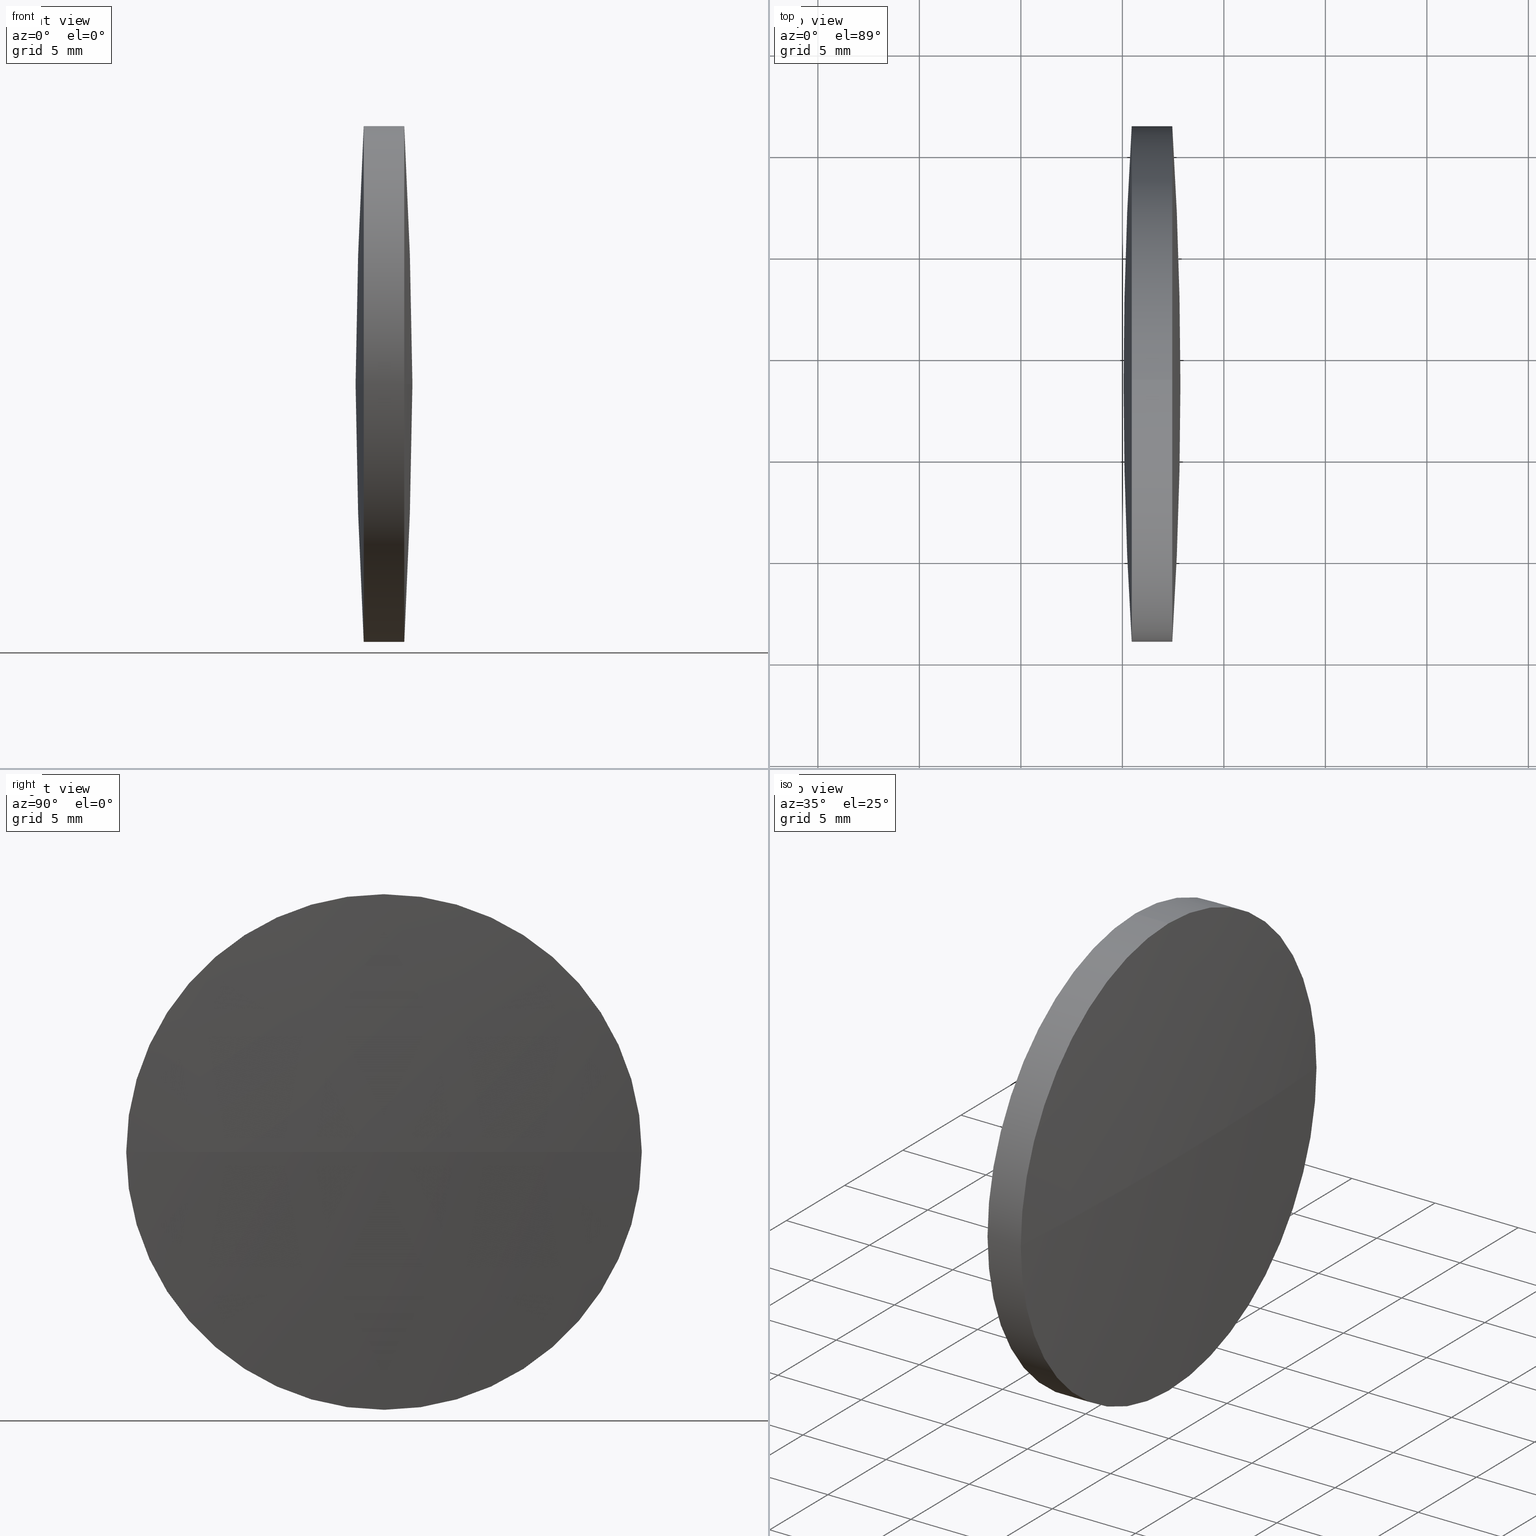
[diagram: canonical four-view strip — front | top / right | iso, engineering-drawing reading convention]
A machine part, canonical four-view strip (front | top / right | iso — engineering-drawing reading convention). The complete STEP part file that produces these views, byte-faithful:
ISO-10303-21;
HEADER;
FILE_DESCRIPTION (( 'STEP AP203' ),
    '1' );
FILE_NAME ('110157.STEP',
    '2019-07-09T05:35:10',
    ( '' ),
    ( '' ),
    'SwSTEP 2.0',
    'SolidWorks 2016',
    '' );
FILE_SCHEMA (( 'CONFIG_CONTROL_DESIGN' ));
ENDSEC;

DATA;
#1 = AXIS2_PLACEMENT_3D ( 'NONE', #160, #211, #30 ) ;
#2 = CARTESIAN_POINT ( 'NONE',  ( 85.45852234609111500, 48.61611302318478100, -12.69999999999999600 ) ) ;
#3 = DIRECTION ( 'NONE',  ( -1.000000000000000000, -0.0000000000000000000, -0.0000000000000000000 ) ) ;
#4 = LOCAL_TIME ( 13, 35, 10.00000000000000000, #321 ) ;
#5 = APPROVAL_DATE_TIME ( #291, #10 ) ;
#6 = CARTESIAN_POINT ( 'NONE',  ( 85.45852234609111500, 48.61611302318478100, 0.0000000000000000000 ) ) ;
#7 = DIRECTION ( 'NONE',  ( -1.000000000000000000, -0.0000000000000000000, -0.0000000000000000000 ) ) ;
#8 = CARTESIAN_POINT ( 'NONE',  ( 79.30540135083715800, 48.61611302318478100, 0.0000000000000000000 ) ) ;
#9 = COORDINATED_UNIVERSAL_TIME_OFFSET ( 8, 0, .AHEAD. ) ;
#10 = APPROVAL ( #177, 'δָ��' ) ;
#11 = EDGE_CURVE ( 'NONE', #73, #296, #157, .T. ) ;
#12 = PERSON_AND_ORGANIZATION ( #110, #148 ) ;
#13 = PRODUCT_RELATED_PRODUCT_CATEGORY ( 'detail', '', ( #337 ) ) ;
#14 = UNCERTAINTY_MEASURE_WITH_UNIT (LENGTH_MEASURE( 1.000000000000000100E-005 ), #129, 'distance_accuracy_value', 'NONE');
#15 = COORDINATED_UNIVERSAL_TIME_OFFSET ( 8, 0, .AHEAD. ) ;
#16 = DATE_AND_TIME ( #141, #252 ) ;
#17 = ORIENTED_EDGE ( 'NONE', *, *, #65, .T. ) ;
#18 = EDGE_CURVE ( 'NONE', #253, #302, #282, .T. ) ;
#19 = PRODUCT_DEFINITION ( 'δ֪', '', #256, #280 ) ;
#20 = CALENDAR_DATE ( 2019, 9, 7 ) ;
#21 = APPLICATION_CONTEXT ( 'configuration controlled 3d designs of mechanical parts and assemblies' ) ;
#22 = ORIENTED_EDGE ( 'NONE', *, *, #11, .T. ) ;
#23 = PRODUCT_RELATED_PRODUCT_CATEGORY ( 'detail', '', ( #136 ) ) ;
#24 = PERSON_AND_ORGANIZATION_ROLE ( 'creator' ) ;
#25 = DIRECTION ( 'NONE',  ( 0.0000000000000000000, 0.0000000000000000000, 1.000000000000000000 ) ) ;
#26 = CARTESIAN_POINT ( 'NONE',  ( 79.30540135083715800, 48.61611302318478100, 12.69999999999999600 ) ) ;
#27 = COORDINATED_UNIVERSAL_TIME_OFFSET ( 8, 0, .AHEAD. ) ;
#28 = ORIENTED_EDGE ( 'NONE', *, *, #338, .T. ) ;
#29 = DIRECTION ( 'NONE',  ( 0.0000000000000000000, 1.000000000000000000, 1.224646799147353500E-016 ) ) ;
#30 = DIRECTION ( 'NONE',  ( -1.000000000000000000, 0.0000000000000000000, 0.0000000000000000000 ) ) ;
#31 = EDGE_CURVE ( 'NONE', #328, #52, #111, .T. ) ;
#32 = ORIENTED_EDGE ( 'NONE', *, *, #45, .T. ) ;
#33 = CC_DESIGN_PERSON_AND_ORGANIZATION_ASSIGNMENT ( #316, #75, ( #337 ) ) ;
#34 = CARTESIAN_POINT ( 'NONE',  ( 87.85816920323401300, 48.61611302318509300, 0.0000000000000000000 ) ) ;
#35 = FACE_OUTER_BOUND ( 'NONE', #163, .T. ) ;
#36 = VERTEX_POINT ( 'NONE', #114 ) ;
#37 = DIRECTION ( 'NONE',  ( 0.0000000000000000000, 0.0000000000000000000, 1.000000000000000000 ) ) ;
#38 = CALENDAR_DATE ( 2019, 9, 7 ) ;
#39 = ADVANCED_FACE ( 'NONE', ( #96 ), #90, .T. ) ;
#40 = CC_DESIGN_APPROVAL ( #323, ( #224 ) ) ;
#41 = APPROVAL_PERSON_ORGANIZATION ( #324, #323, #313 ) ;
#42 = SPHERICAL_SURFACE ( 'NONE', #53, 201.6595428629199500 ) ;
#43 = CALENDAR_DATE ( 2019, 9, 7 ) ;
#44 = ORIENTED_EDGE ( 'NONE', *, *, #273, .T. ) ;
#45 = EDGE_CURVE ( 'NONE', #296, #36, #274, .T. ) ;
#46 = APPLICATION_PROTOCOL_DEFINITION ( 'international standard', 'config_control_design', 1994, #318 ) ;
#47 = APPROVAL_ROLE ( '' ) ;
#48 = DIRECTION ( 'NONE',  ( 0.0000000000000000000, -1.224646799147353200E-016, 1.000000000000000000 ) ) ;
#49 = DATE_TIME_ROLE ( 'creation_date' ) ;
#50 = COORDINATED_UNIVERSAL_TIME_OFFSET ( 8, 0, .AHEAD. ) ;
#51 = CC_DESIGN_DATE_AND_TIME_ASSIGNMENT ( #308, #206, ( #343 ) ) ;
#52 = VERTEX_POINT ( 'NONE', #2 ) ;
#53 = AXIS2_PLACEMENT_3D ( 'NONE', #220, #165, #297 ) ;
#54 = APPROVAL_STATUS ( 'not_yet_approved' ) ;
#55 = ADVANCED_BREP_SHAPE_REPRESENTATION ( '110157', ( #196, #184 ), #244 ) ;
#56 = DIRECTION ( 'NONE',  ( -1.000000000000000000, -0.0000000000000000000, -0.0000000000000000000 ) ) ;
#57 = CIRCLE ( 'NONE', #228, 201.6595428629401900 ) ;
#58 = ORIENTED_EDGE ( 'NONE', *, *, #18, .T. ) ;
#59 = CARTESIAN_POINT ( 'NONE',  ( 87.45786520323396500, 48.61611302318478100, -12.69999999999999600 ) ) ;
#60 = AXIS2_PLACEMENT_3D ( 'NONE', #266, #139, #320 ) ;
#61 = CC_DESIGN_PERSON_AND_ORGANIZATION_ASSIGNMENT ( #295, #289, ( #343 ) ) ;
#62 = CARTESIAN_POINT ( 'NONE',  ( 87.45786520323396500, 48.61611302318478100, 0.0000000000000000000 ) ) ;
#63 = DIRECTION ( 'NONE',  ( -1.000000000000000000, -0.0000000000000000000, -0.0000000000000000000 ) ) ;
#64 = PERSON_AND_ORGANIZATION ( #110, #148 ) ;
#65 = EDGE_CURVE ( 'NONE', #239, #296, #152, .T. ) ;
#66 = DIRECTION ( 'NONE',  ( 0.0000000000000000000, 0.0000000000000000000, 1.000000000000000000 ) ) ;
#67 = PERSON_AND_ORGANIZATION ( #110, #148 ) ;
#68 = ORIENTED_EDGE ( 'NONE', *, *, #11, .F. ) ;
#69 = LINE ( 'NONE', #94, #197 ) ;
#70 = CC_DESIGN_DATE_AND_TIME_ASSIGNMENT ( #166, #285, ( #329 ) ) ;
#71 = AXIS2_PLACEMENT_3D ( 'NONE', #167, #245, #241 ) ;
#72 = ADVANCED_FACE ( 'NONE', ( #35 ), #145, .T. ) ;
#73 = VERTEX_POINT ( 'NONE', #59 ) ;
#74 = AXIS2_PLACEMENT_3D ( 'NONE', #217, #91, #92 ) ;
#75 = PERSON_AND_ORGANIZATION_ROLE ( 'design_owner' ) ;
#76 = APPROVAL_ROLE ( '' ) ;
#77 = CC_DESIGN_APPROVAL ( #100, ( #329 ) ) ;
#78 = LOCAL_TIME ( 13, 35, 10.00000000000000000, #133 ) ;
#79 = PRODUCT_DEFINITION_SHAPE ( 'NONE', 'NONE',  #224 ) ;
#80 = CIRCLE ( 'NONE', #248, 12.69999999999999600 ) ;
#81 = CARTESIAN_POINT ( 'NONE',  ( 85.45852234609111500, 48.61611302318478100, 12.69999999999999600 ) ) ;
#82 = PERSON_AND_ORGANIZATION_ROLE ( 'creator' ) ;
#83 = APPROVAL_ROLE ( '' ) ;
#84 = DIRECTION ( 'NONE',  ( 1.000000000000000000, 0.0000000000000000000, 0.0000000000000000000 ) ) ;
#85 = APPROVAL_PERSON_ORGANIZATION ( #67, #276, #234 ) ;
#86 = EDGE_LOOP ( 'NONE', ( #247, #97, #169, #190, #230, #186 ) ) ;
#87 = DIRECTION ( 'NONE',  ( 0.0000000000000000000, 0.0000000000000000000, 1.000000000000000000 ) ) ;
#88 = APPLICATION_PROTOCOL_DEFINITION ( 'international standard', 'config_control_design', 1994, #240 ) ;
#89 = APPROVAL_DATE_TIME ( #95, #276 ) ;
#90 = SPHERICAL_SURFACE ( 'NONE', #207, 201.6595428629199500 ) ;
#91 = DIRECTION ( 'NONE',  ( -0.0000000000000000000, 0.0000000000000000000, -1.000000000000000000 ) ) ;
#92 = DIRECTION ( 'NONE',  ( 0.0000000000000000000, 1.000000000000000000, 0.0000000000000000000 ) ) ;
#93 = AXIS2_PLACEMENT_3D ( 'NONE', #314, #286, #204 ) ;
#94 = CARTESIAN_POINT ( 'NONE',  ( 79.30540135083715800, 48.61611302318478100, -12.69999999999999600 ) ) ;
#95 = DATE_AND_TIME ( #255, #127 ) ;
#96 = FACE_OUTER_BOUND ( 'NONE', #118, .T. ) ;
#97 = ORIENTED_EDGE ( 'NONE', *, *, #300, .T. ) ;
#98 = LOCAL_TIME ( 13, 35, 10.00000000000000000, #15 ) ;
#99 = ORIENTED_EDGE ( 'NONE', *, *, #194, .F. ) ;
#100 = APPROVAL ( #156, 'δָ��' ) ;
#101 = APPROVAL_DATE_TIME ( #290, #331 ) ;
#102 = LINE ( 'NONE', #26, #278 ) ;
#103 = AXIS2_PLACEMENT_3D ( 'NONE', #6, #3, #212 ) ;
#104 = DATE_AND_TIME ( #38, #315 ) ;
#105 = CARTESIAN_POINT ( 'NONE',  ( 286.7177612090313200, 48.61611302318415500, 0.0000000000000000000 ) ) ;
#106 = ORIENTED_EDGE ( 'NONE', *, *, #300, .F. ) ;
#107 = DIRECTION ( 'NONE',  ( -1.000000000000000000, -0.0000000000000000000, -0.0000000000000000000 ) ) ;
#108 = APPROVAL_ROLE ( '' ) ;
#109 = PERSON_AND_ORGANIZATION ( #110, #148 ) ;
#110 = PERSON ( 'δָ��', 'δָ��', 'δָ��', ('δָ��'), ('δָ��'), ('δָ��') ) ;
#111 = CIRCLE ( 'NONE', #193, 12.69999999999999600 ) ;
#112 = AXIS2_PLACEMENT_3D ( 'NONE', #202, #48, #284 ) ;
#113 = CARTESIAN_POINT ( 'NONE',  ( 85.45852234609111500, 61.31611302318436400, 0.0000000000000000000 ) ) ;
#114 = CARTESIAN_POINT ( 'NONE',  ( 87.45786520323396500, 48.61611302318478100, 12.69999999999999600 ) ) ;
#115 = DIRECTION ( 'NONE',  ( -1.000000000000000000, -0.0000000000000000000, -0.0000000000000000000 ) ) ;
#116 = CARTESIAN_POINT ( 'NONE',  ( 87.45786520323395100, 61.31611302318497500, 1.555301434917121700E-015 ) ) ;
#117 = COORDINATED_UNIVERSAL_TIME_OFFSET ( 8, 0, .AHEAD. ) ;
#118 = EDGE_LOOP ( 'NONE', ( #225, #198, #309, #173 ) ) ;
#119 = CC_DESIGN_PERSON_AND_ORGANIZATION_ASSIGNMENT ( #125, #153, ( #19 ) ) ;
#120 = FACE_OUTER_BOUND ( 'NONE', #128, .T. ) ;
#121 = CARTESIAN_POINT ( 'NONE',  ( 85.45852234609111500, 35.91611302318457900, -1.555301434917087000E-015 ) ) ;
#122 = DIRECTION ( 'NONE',  ( -1.000000000000000000, -0.0000000000000000000, -0.0000000000000000000 ) ) ;
#123 = AXIS2_PLACEMENT_3D ( 'NONE', #8, #7, #327 ) ;
#124 = APPROVAL_PERSON_ORGANIZATION ( #178, #132, #47 ) ;
#125 = PERSON_AND_ORGANIZATION ( #110, #148 ) ;
#126 = VERTEX_POINT ( 'NONE', #116 ) ;
#127 = LOCAL_TIME ( 13, 35, 10.00000000000000000, #9 ) ;
#128 = EDGE_LOOP ( 'NONE', ( #322, #17, #68, #99 ) ) ;
#129 =( LENGTH_UNIT ( ) NAMED_UNIT ( * ) SI_UNIT ( .MILLI., .METRE. ) );
#130 = PERSON_AND_ORGANIZATION_ROLE ( 'creator' ) ;
#131 = APPLICATION_PROTOCOL_DEFINITION ( 'international standard', 'config_control_design', 1994, #208 ) ;
#132 = APPROVAL ( #341, 'δָ��' ) ;
#133 = COORDINATED_UNIVERSAL_TIME_OFFSET ( 8, 0, .AHEAD. ) ;
#134 = DIRECTION ( 'NONE',  ( -1.000000000000000000, -0.0000000000000000000, -0.0000000000000000000 ) ) ;
#135 = DIRECTION ( 'NONE',  ( 1.000000000000000000, 0.0000000000000000000, 0.0000000000000000000 ) ) ;
#136 = PRODUCT ( '110157', '110157', '', ( #200 ) ) ;
#137 = DESIGN_CONTEXT ( 'detailed design', #240, 'design' ) ;
#138 = PERSON_AND_ORGANIZATION_ROLE ( 'design_supplier' ) ;
#139 = DIRECTION ( 'NONE',  ( -0.0000000000000000000, 0.0000000000000000000, -1.000000000000000000 ) ) ;
#140 = CARTESIAN_POINT ( 'NONE',  ( -113.8013736596859400, 48.61611302318510800, 0.0000000000000000000 ) ) ;
#141 = CALENDAR_DATE ( 2019, 9, 7 ) ;
#142 = CARTESIAN_POINT ( 'NONE',  ( 85.05821834609112400, 48.61611302318417000, 0.0000000000000000000 ) ) ;
#143 = CC_DESIGN_PERSON_AND_ORGANIZATION_ASSIGNMENT ( #171, #82, ( #256 ) ) ;
#144 = CIRCLE ( 'NONE', #112, 201.6595428629199500 ) ;
#145 = SPHERICAL_SURFACE ( 'NONE', #60, 201.6595428629401900 ) ;
#146 = CC_DESIGN_SECURITY_CLASSIFICATION ( #343, ( #249 ) ) ;
#147 = DATE_AND_TIME ( #174, #233 ) ;
#148 = ORGANIZATION ( 'δָ��', 'δָ��', '' ) ;
#149 = CLOSED_SHELL ( 'NONE', ( #170, #39, #72, #279, #223, #330 ) ) ;
#150 = AXIS2_PLACEMENT_3D ( 'NONE', #216, #271, #37 ) ;
#151 = PERSON_AND_ORGANIZATION ( #110, #148 ) ;
#152 = CIRCLE ( 'NONE', #1, 201.6595428629199200 ) ;
#153 = PERSON_AND_ORGANIZATION_ROLE ( 'creator' ) ;
#154 = CC_DESIGN_PERSON_AND_ORGANIZATION_ASSIGNMENT ( #238, #232, ( #329 ) ) ;
#155 = APPROVAL_PERSON_ORGANIZATION ( #109, #331, #83 ) ;
#156 = APPROVAL_STATUS ( 'not_yet_approved' ) ;
#157 = CIRCLE ( 'NONE', #222, 12.69999999999999600 ) ;
#158 = SECURITY_CLASSIFICATION_LEVEL ( 'unclassified' ) ;
#159 = CARTESIAN_POINT ( 'NONE',  ( 85.45852234609111500, 48.61611302318478100, 0.0000000000000000000 ) ) ;
#160 = CARTESIAN_POINT ( 'NONE',  ( -113.8013736596859400, 48.61611302318510800, 0.0000000000000000000 ) ) ;
#161 = DIRECTION ( 'NONE',  ( 0.0000000000000000000, 0.0000000000000000000, 1.000000000000000000 ) ) ;
#162 = PERSON_AND_ORGANIZATION ( #110, #148 ) ;
#163 = EDGE_LOOP ( 'NONE', ( #275, #44, #299, #210 ) ) ;
#164 = CC_DESIGN_APPROVAL ( #331, ( #249 ) ) ;
#165 = DIRECTION ( 'NONE',  ( 0.0000000000000000000, 0.0000000000000000000, 1.000000000000000000 ) ) ;
#166 = DATE_AND_TIME ( #332, #229 ) ;
#167 = CARTESIAN_POINT ( 'NONE',  ( 85.45852234609111500, 48.61611302318478100, 0.0000000000000000000 ) ) ;
#168 = DATE_AND_TIME ( #43, #4 ) ;
#169 = ORIENTED_EDGE ( 'NONE', *, *, #31, .F. ) ;
#170 = ADVANCED_FACE ( 'NONE', ( #306 ), #209, .T. ) ;
#171 = PERSON_AND_ORGANIZATION ( #110, #148 ) ;
#172 = CALENDAR_DATE ( 2019, 9, 7 ) ;
#173 = ORIENTED_EDGE ( 'NONE', *, *, #45, .F. ) ;
#174 = CALENDAR_DATE ( 2019, 9, 7 ) ;
#175 = ORIENTED_EDGE ( 'NONE', *, *, #18, .F. ) ;
#176 = CC_DESIGN_APPROVAL ( #132, ( #343 ) ) ;
#177 = APPROVAL_STATUS ( 'not_yet_approved' ) ;
#178 = PERSON_AND_ORGANIZATION ( #110, #148 ) ;
#179 = APPROVAL_STATUS ( 'not_yet_approved' ) ;
#180 = CIRCLE ( 'NONE', #150, 12.69999999999999600 ) ;
#181 =( NAMED_UNIT ( * ) PLANE_ANGLE_UNIT ( ) SI_UNIT ( $, .RADIAN. ) );
#182 = DIRECTION ( 'NONE',  ( 0.0000000000000000000, 1.224646799147353200E-016, -1.000000000000000000 ) ) ;
#183 = CARTESIAN_POINT ( 'NONE',  ( 87.45786520323396500, 48.61611302318478100, 0.0000000000000000000 ) ) ;
#184 = AXIS2_PLACEMENT_3D ( 'NONE', #231, #25, #84 ) ;
#185 = FACE_OUTER_BOUND ( 'NONE', #283, .T. ) ;
#186 = ORIENTED_EDGE ( 'NONE', *, *, #254, .T. ) ;
#187 = APPROVAL_PERSON_ORGANIZATION ( #162, #100, #108 ) ;
#188 = SHAPE_DEFINITION_REPRESENTATION ( #79, #55 ) ;
#189 = DIRECTION ( 'NONE',  ( 0.0000000000000000000, 0.0000000000000000000, 1.000000000000000000 ) ) ;
#190 = ORIENTED_EDGE ( 'NONE', *, *, #236, .F. ) ;
#191 = PRODUCT_DEFINITION_SHAPE ( 'NONE', 'NONE',  #19 ) ;
#192 = CARTESIAN_POINT ( 'NONE',  ( 87.45786520323396500, 48.61611302318478100, 0.0000000000000000000 ) ) ;
#193 = AXIS2_PLACEMENT_3D ( 'NONE', #159, #265, #237 ) ;
#194 = EDGE_CURVE ( 'NONE', #126, #73, #180, .T. ) ;
#195 = CALENDAR_DATE ( 2019, 9, 7 ) ;
#196 = MANIFOLD_SOLID_BREP ( '��ת1', #149 ) ;
#197 = VECTOR ( 'NONE', #134, 1000.000000000000000 ) ;
#198 = ORIENTED_EDGE ( 'NONE', *, *, #307, .T. ) ;
#199 = CC_DESIGN_APPROVAL ( #10, ( #19 ) ) ;
#200 = MECHANICAL_CONTEXT ( 'NONE', #21, 'mechanical' ) ;
#201 = PERSON_AND_ORGANIZATION_ROLE ( 'design_supplier' ) ;
#202 = CARTESIAN_POINT ( 'NONE',  ( -113.8013736596859400, 48.61611302318510800, 0.0000000000000000000 ) ) ;
#203 = CIRCLE ( 'NONE', #281, 12.69999999999999600 ) ;
#204 = DIRECTION ( 'NONE',  ( 1.000000000000000000, 0.0000000000000000000, 0.0000000000000000000 ) ) ;
#205 = DIRECTION ( 'NONE',  ( -0.0000000000000000000, 0.0000000000000000000, 1.000000000000000000 ) ) ;
#206 = DATE_TIME_ROLE ( 'classification_date' ) ;
#207 = AXIS2_PLACEMENT_3D ( 'NONE', #140, #267, #215 ) ;
#208 = APPLICATION_CONTEXT ( 'configuration controlled 3d designs of mechanical parts and assemblies' ) ;
#209 = CYLINDRICAL_SURFACE ( 'NONE', #123, 12.69999999999999600 ) ;
#210 = ORIENTED_EDGE ( 'NONE', *, *, #338, .F. ) ;
#211 = DIRECTION ( 'NONE',  ( 0.0000000000000000000, 0.0000000000000000000, -1.000000000000000000 ) ) ;
#212 = DIRECTION ( 'NONE',  ( 0.0000000000000000000, 0.0000000000000000000, 1.000000000000000000 ) ) ;
#213 = CIRCLE ( 'NONE', #71, 12.69999999999999600 ) ;
#214 = CC_DESIGN_PERSON_AND_ORGANIZATION_ASSIGNMENT ( #151, #24, ( #249 ) ) ;
#215 = DIRECTION ( 'NONE',  ( 0.0000000000000000000, -1.000000000000000000, 0.0000000000000000000 ) ) ;
#216 = CARTESIAN_POINT ( 'NONE',  ( 87.45786520323396500, 48.61611302318478100, 0.0000000000000000000 ) ) ;
#217 = CARTESIAN_POINT ( 'NONE',  ( 286.7177612090313200, 48.61611302318415500, 0.0000000000000000000 ) ) ;
#218 = PERSON_AND_ORGANIZATION ( #110, #148 ) ;
#219 = CYLINDRICAL_SURFACE ( 'NONE', #268, 12.69999999999999600 ) ;
#220 = CARTESIAN_POINT ( 'NONE',  ( -113.8013736596859400, 48.61611302318510800, 0.0000000000000000000 ) ) ;
#221 = VERTEX_POINT ( 'NONE', #142 ) ;
#222 = AXIS2_PLACEMENT_3D ( 'NONE', #62, #319, #161 ) ;
#223 = ADVANCED_FACE ( 'NONE', ( #120 ), #42, .T. ) ;
#224 = PRODUCT_DEFINITION ( 'δ֪', '', #249, #137 ) ;
#225 = ORIENTED_EDGE ( 'NONE', *, *, #65, .F. ) ;
#226 = LOCAL_TIME ( 13, 35, 10.00000000000000000, #27 ) ;
#227 = LOCAL_TIME ( 13, 35, 10.00000000000000000, #334 ) ;
#228 = AXIS2_PLACEMENT_3D ( 'NONE', #339, #205, #135 ) ;
#229 = LOCAL_TIME ( 13, 35, 10.00000000000000000, #242 ) ;
#230 = ORIENTED_EDGE ( 'NONE', *, *, #292, .F. ) ;
#231 = CARTESIAN_POINT ( 'NONE',  ( 0.0000000000000000000, 0.0000000000000000000, 0.0000000000000000000 ) ) ;
#232 = PERSON_AND_ORGANIZATION_ROLE ( 'classification_officer' ) ;
#233 = LOCAL_TIME ( 13, 35, 10.00000000000000000, #117 ) ;
#234 = APPROVAL_ROLE ( '' ) ;
#235 = SPHERICAL_SURFACE ( 'NONE', #74, 201.6595428629401900 ) ;
#236 = EDGE_CURVE ( 'NONE', #302, #328, #213, .T. ) ;
#237 = DIRECTION ( 'NONE',  ( 0.0000000000000000000, 0.0000000000000000000, 1.000000000000000000 ) ) ;
#238 = PERSON_AND_ORGANIZATION ( #110, #148 ) ;
#239 = VERTEX_POINT ( 'NONE', #34 ) ;
#240 = APPLICATION_CONTEXT ( 'configuration controlled 3d designs of mechanical parts and assemblies' ) ;
#241 = DIRECTION ( 'NONE',  ( 0.0000000000000000000, 0.0000000000000000000, 1.000000000000000000 ) ) ;
#242 = COORDINATED_UNIVERSAL_TIME_OFFSET ( 8, 0, .AHEAD. ) ;
#243 = APPROVAL_PERSON_ORGANIZATION ( #64, #10, #76 ) ;
#244 =( GEOMETRIC_REPRESENTATION_CONTEXT ( 3 ) GLOBAL_UNCERTAINTY_ASSIGNED_CONTEXT ( ( #14 ) ) GLOBAL_UNIT_ASSIGNED_CONTEXT ( ( #129, #181, #260 ) ) REPRESENTATION_CONTEXT ( 'NONE', 'WORKASPACE' ) );
#245 = DIRECTION ( 'NONE',  ( -1.000000000000000000, -0.0000000000000000000, -0.0000000000000000000 ) ) ;
#246 = APPROVAL_DATE_TIME ( #168, #132 ) ;
#247 = ORIENTED_EDGE ( 'NONE', *, *, #194, .T. ) ;
#248 = AXIS2_PLACEMENT_3D ( 'NONE', #192, #63, #189 ) ;
#249 = PRODUCT_DEFINITION_FORMATION_WITH_SPECIFIED_SOURCE ( '�κ�', '', #337, .NOT_KNOWN. ) ;
#250 = CC_DESIGN_PERSON_AND_ORGANIZATION_ASSIGNMENT ( #12, #258, ( #136 ) ) ;
#251 = CALENDAR_DATE ( 2019, 9, 7 ) ;
#252 = LOCAL_TIME ( 13, 35, 10.00000000000000000, #50 ) ;
#253 = VERTEX_POINT ( 'NONE', #121 ) ;
#254 = EDGE_CURVE ( 'NONE', #36, #126, #80, .T. ) ;
#255 = CALENDAR_DATE ( 2019, 9, 7 ) ;
#256 = PRODUCT_DEFINITION_FORMATION_WITH_SPECIFIED_SOURCE ( '�κ�', '', #136, .NOT_KNOWN. ) ;
#257 = ORIENTED_EDGE ( 'NONE', *, *, #292, .T. ) ;
#258 = PERSON_AND_ORGANIZATION_ROLE ( 'design_owner' ) ;
#259 = CC_DESIGN_SECURITY_CLASSIFICATION ( #329, ( #256 ) ) ;
#260 =( NAMED_UNIT ( * ) SI_UNIT ( $, .STERADIAN. ) SOLID_ANGLE_UNIT ( ) );
#261 = DATE_AND_TIME ( #195, #226 ) ;
#262 = APPROVAL_STATUS ( 'not_yet_approved' ) ;
#263 = CIRCLE ( 'NONE', #303, 201.6595428629401600 ) ;
#264 = SECURITY_CLASSIFICATION_LEVEL ( 'unclassified' ) ;
#265 = DIRECTION ( 'NONE',  ( -1.000000000000000000, -0.0000000000000000000, -0.0000000000000000000 ) ) ;
#266 = CARTESIAN_POINT ( 'NONE',  ( 286.7177612090313200, 48.61611302318415500, 0.0000000000000000000 ) ) ;
#267 = DIRECTION ( 'NONE',  ( 0.0000000000000000000, 0.0000000000000000000, 1.000000000000000000 ) ) ;
#268 = AXIS2_PLACEMENT_3D ( 'NONE', #344, #56, #342 ) ;
#269 = PERSON_AND_ORGANIZATION ( #110, #148 ) ;
#270 = CC_DESIGN_DATE_AND_TIME_ASSIGNMENT ( #16, #49, ( #19 ) ) ;
#271 = DIRECTION ( 'NONE',  ( -1.000000000000000000, -0.0000000000000000000, -0.0000000000000000000 ) ) ;
#272 = CARTESIAN_POINT ( 'NONE',  ( 85.45852234609111500, 48.61611302318478100, 0.0000000000000000000 ) ) ;
#273 = EDGE_CURVE ( 'NONE', #52, #253, #203, .T. ) ;
#274 = CIRCLE ( 'NONE', #325, 12.69999999999999600 ) ;
#275 = ORIENTED_EDGE ( 'NONE', *, *, #31, .T. ) ;
#276 = APPROVAL ( #54, 'δָ��' ) ;
#277 = CC_DESIGN_PERSON_AND_ORGANIZATION_ASSIGNMENT ( #269, #130, ( #224 ) ) ;
#278 = VECTOR ( 'NONE', #107, 1000.000000000000000 ) ;
#279 = ADVANCED_FACE ( 'NONE', ( #185 ), #235, .T. ) ;
#280 = DESIGN_CONTEXT ( 'detailed design', #318, 'design' ) ;
#281 = AXIS2_PLACEMENT_3D ( 'NONE', #272, #122, #66 ) ;
#282 = CIRCLE ( 'NONE', #103, 12.69999999999999600 ) ;
#283 = EDGE_LOOP ( 'NONE', ( #326, #58, #335, #28 ) ) ;
#284 = DIRECTION ( 'NONE',  ( 0.0000000000000000000, -1.000000000000000000, -1.224646799147353200E-016 ) ) ;
#285 = DATE_TIME_ROLE ( 'classification_date' ) ;
#286 = DIRECTION ( 'NONE',  ( 0.0000000000000000000, 0.0000000000000000000, 1.000000000000000000 ) ) ;
#287 = CC_DESIGN_APPROVAL ( #276, ( #256 ) ) ;
#288 = MECHANICAL_CONTEXT ( 'NONE', #208, 'mechanical' ) ;
#289 = PERSON_AND_ORGANIZATION_ROLE ( 'classification_officer' ) ;
#290 = DATE_AND_TIME ( #20, #98 ) ;
#291 = DATE_AND_TIME ( #172, #227 ) ;
#292 = EDGE_CURVE ( 'NONE', #36, #302, #102, .T. ) ;
#293 = ORIENTED_EDGE ( 'NONE', *, *, #273, .F. ) ;
#294 = CC_DESIGN_PERSON_AND_ORGANIZATION_ASSIGNMENT ( #301, #138, ( #256 ) ) ;
#295 = PERSON_AND_ORGANIZATION ( #110, #148 ) ;
#296 = VERTEX_POINT ( 'NONE', #312 ) ;
#297 = DIRECTION ( 'NONE',  ( 0.0000000000000000000, -1.000000000000000000, 0.0000000000000000000 ) ) ;
#298 = APPROVAL_DATE_TIME ( #147, #323 ) ;
#299 = ORIENTED_EDGE ( 'NONE', *, *, #345, .T. ) ;
#300 = EDGE_CURVE ( 'NONE', #73, #52, #69, .T. ) ;
#301 = PERSON_AND_ORGANIZATION ( #110, #148 ) ;
#302 = VERTEX_POINT ( 'NONE', #81 ) ;
#303 = AXIS2_PLACEMENT_3D ( 'NONE', #105, #182, #29 ) ;
#304 = CC_DESIGN_PERSON_AND_ORGANIZATION_ASSIGNMENT ( #218, #201, ( #249 ) ) ;
#305 = COORDINATED_UNIVERSAL_TIME_OFFSET ( 8, 0, .AHEAD. ) ;
#306 = FACE_OUTER_BOUND ( 'NONE', #86, .T. ) ;
#307 = EDGE_CURVE ( 'NONE', #239, #126, #144, .T. ) ;
#308 = DATE_AND_TIME ( #251, #78 ) ;
#309 = ORIENTED_EDGE ( 'NONE', *, *, #254, .F. ) ;
#310 = CC_DESIGN_DATE_AND_TIME_ASSIGNMENT ( #261, #311, ( #224 ) ) ;
#311 = DATE_TIME_ROLE ( 'creation_date' ) ;
#312 = CARTESIAN_POINT ( 'NONE',  ( 87.45786520323395100, 35.91611302318492000, 0.0000000000000000000 ) ) ;
#313 = APPROVAL_ROLE ( '' ) ;
#314 = CARTESIAN_POINT ( 'NONE',  ( 0.0000000000000000000, 0.0000000000000000000, 0.0000000000000000000 ) ) ;
#315 = LOCAL_TIME ( 13, 35, 10.00000000000000000, #305 ) ;
#316 = PERSON_AND_ORGANIZATION ( #110, #148 ) ;
#317 = EDGE_LOOP ( 'NONE', ( #106, #22, #32, #257, #175, #293 ) ) ;
#318 = APPLICATION_CONTEXT ( 'configuration controlled 3d designs of mechanical parts and assemblies' ) ;
#319 = DIRECTION ( 'NONE',  ( -1.000000000000000000, -0.0000000000000000000, -0.0000000000000000000 ) ) ;
#320 = DIRECTION ( 'NONE',  ( 0.0000000000000000000, 1.000000000000000000, 0.0000000000000000000 ) ) ;
#321 = COORDINATED_UNIVERSAL_TIME_OFFSET ( 8, 0, .AHEAD. ) ;
#322 = ORIENTED_EDGE ( 'NONE', *, *, #307, .F. ) ;
#323 = APPROVAL ( #179, 'δָ��' ) ;
#324 = PERSON_AND_ORGANIZATION ( #110, #148 ) ;
#325 = AXIS2_PLACEMENT_3D ( 'NONE', #183, #115, #87 ) ;
#326 = ORIENTED_EDGE ( 'NONE', *, *, #345, .F. ) ;
#327 = DIRECTION ( 'NONE',  ( 0.0000000000000000000, 0.0000000000000000000, 1.000000000000000000 ) ) ;
#328 = VERTEX_POINT ( 'NONE', #113 ) ;
#329 = SECURITY_CLASSIFICATION ( '', '', #264 ) ;
#330 = ADVANCED_FACE ( 'NONE', ( #333 ), #219, .T. ) ;
#331 = APPROVAL ( #262, 'δָ��' ) ;
#332 = CALENDAR_DATE ( 2019, 9, 7 ) ;
#333 = FACE_OUTER_BOUND ( 'NONE', #317, .T. ) ;
#334 = COORDINATED_UNIVERSAL_TIME_OFFSET ( 8, 0, .AHEAD. ) ;
#335 = ORIENTED_EDGE ( 'NONE', *, *, #236, .T. ) ;
#336 = APPLICATION_PROTOCOL_DEFINITION ( 'international standard', 'config_control_design', 1994, #21 ) ;
#337 = PRODUCT ( '110157', '110157', '', ( #288 ) ) ;
#338 = EDGE_CURVE ( 'NONE', #328, #221, #57, .T. ) ;
#339 = CARTESIAN_POINT ( 'NONE',  ( 286.7177612090313200, 48.61611302318415500, 0.0000000000000000000 ) ) ;
#340 = APPROVAL_DATE_TIME ( #104, #100 ) ;
#341 = APPROVAL_STATUS ( 'not_yet_approved' ) ;
#342 = DIRECTION ( 'NONE',  ( 0.0000000000000000000, 0.0000000000000000000, 1.000000000000000000 ) ) ;
#343 = SECURITY_CLASSIFICATION ( '', '', #158 ) ;
#344 = CARTESIAN_POINT ( 'NONE',  ( 79.30540135083715800, 48.61611302318478100, 0.0000000000000000000 ) ) ;
#345 = EDGE_CURVE ( 'NONE', #253, #221, #263, .T. ) ;
ENDSEC;
END-ISO-10303-21;
